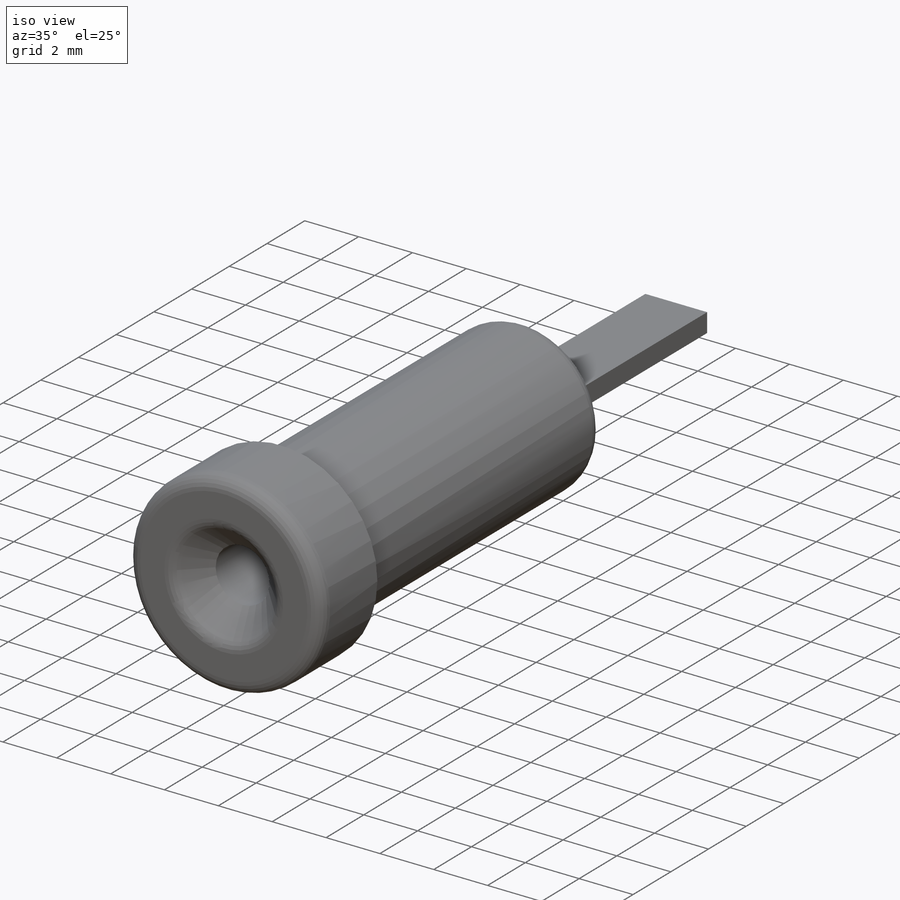
[diagram: iso view]
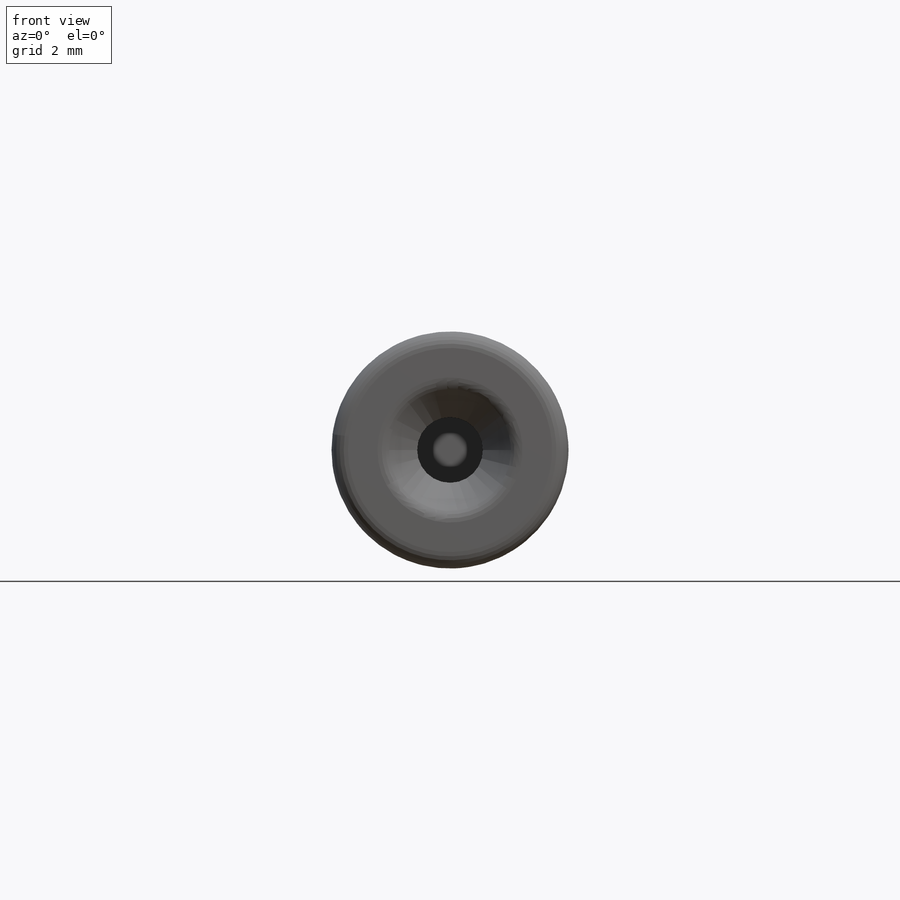
[diagram: front view]
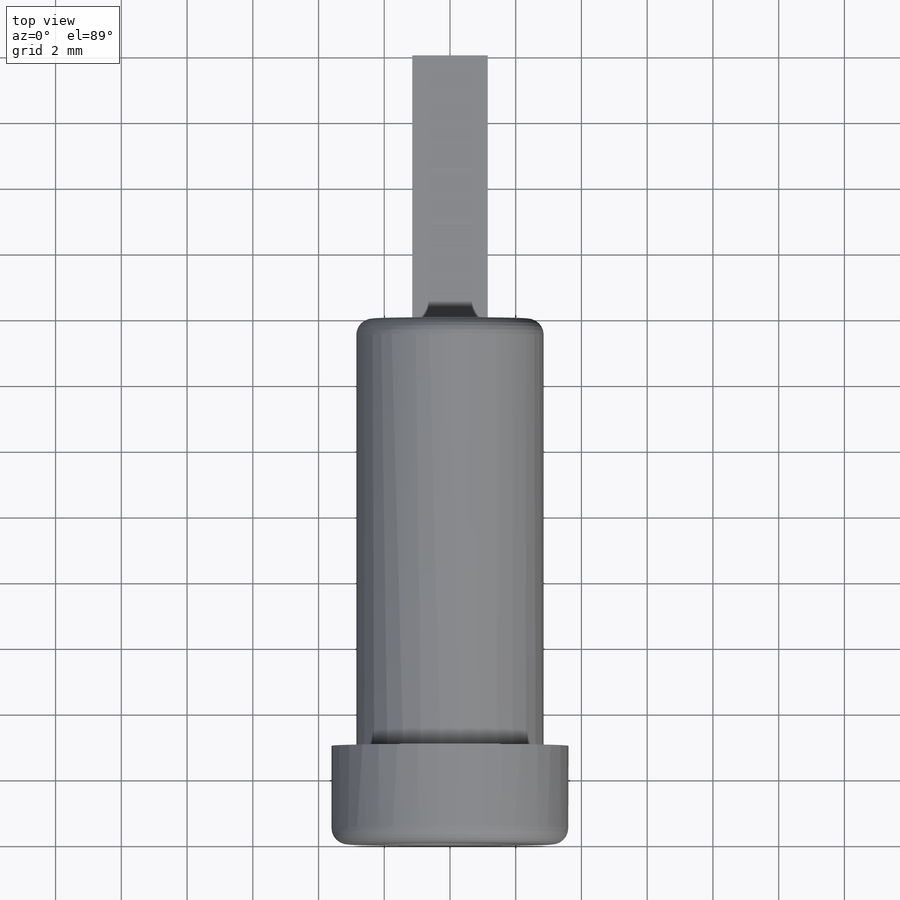
[diagram: top view]
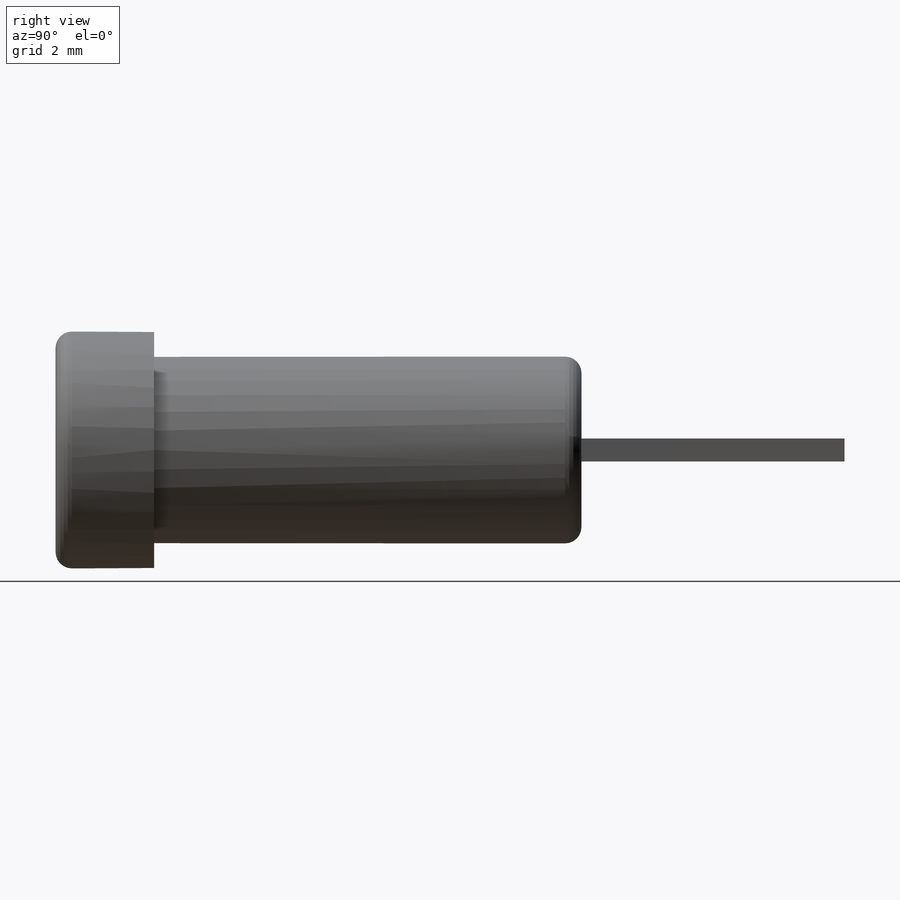
[diagram: right view]
SOLIDWORKS PART (.sldprt)
format: sldprt  version: not decoded by parser v0  size: 227,328 bytes
history: native  units: mm
features: sketch x2, material x1, revolve x1, cut_extrude x1, chamfer x1, fillet x1 (+11 scaffold rows collapsed)
feature tree (18):
  scaffold x11  (default folders/planes/origin — collapsed)
  material  "Material <not specified>"
  sketch  "Sketch2"  dims[D1=2.0mm D2=12.0mm D3=24.0mm D4=8.0mm D5=5.7mm D6=2.4mm D7=7.21mm D8=3.0mm]
  revolve  "Revolve1"  Angle=360deg
  sketch  "Sketch3"  dims[D1=0.7mm D2=~2.783174mm]
  cut_extrude  "Cut-Extrude1"  [1 undecoded]
  chamfer  "Chamfer1"  Distance=1mm Angle=45deg
  fillet  "Fillet1"  Radius=0.5mm
decode coverage: 5 of 6 modeling features carry decoded parameters
note: ~ marks probable driven/reference dimensions
note: 1 parameter value undecoded
note: suppression state not decoded; provenance and decode notes live in map.json
